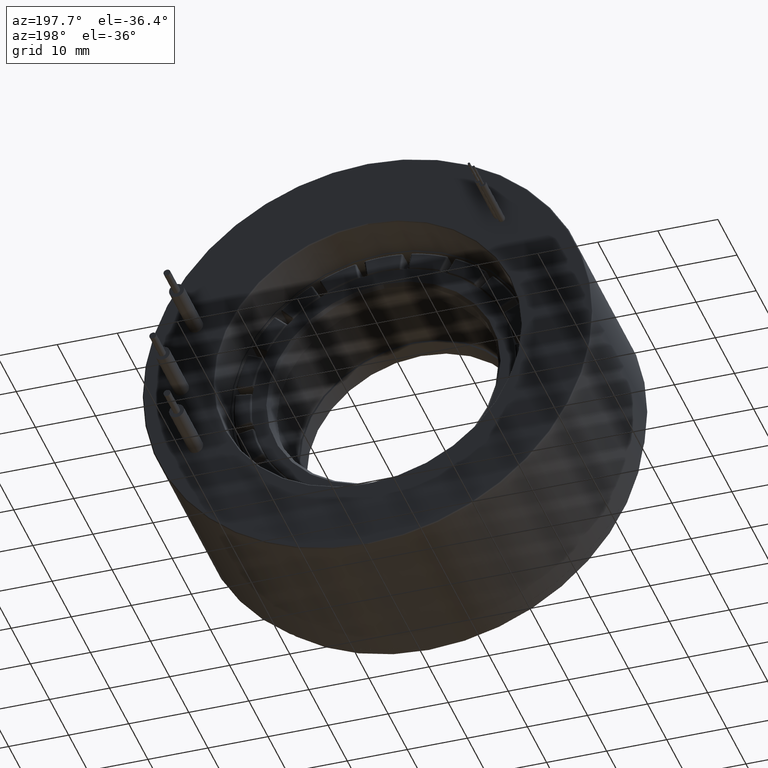
[diagram: clean part render]
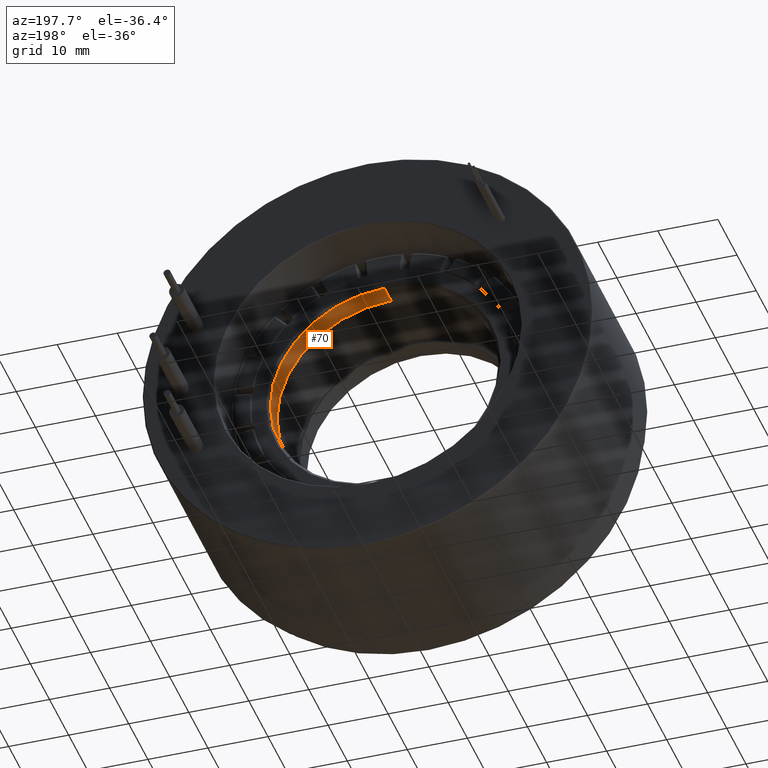
[diagram: same view with one face highlighted and labeled with its STEP entity id]
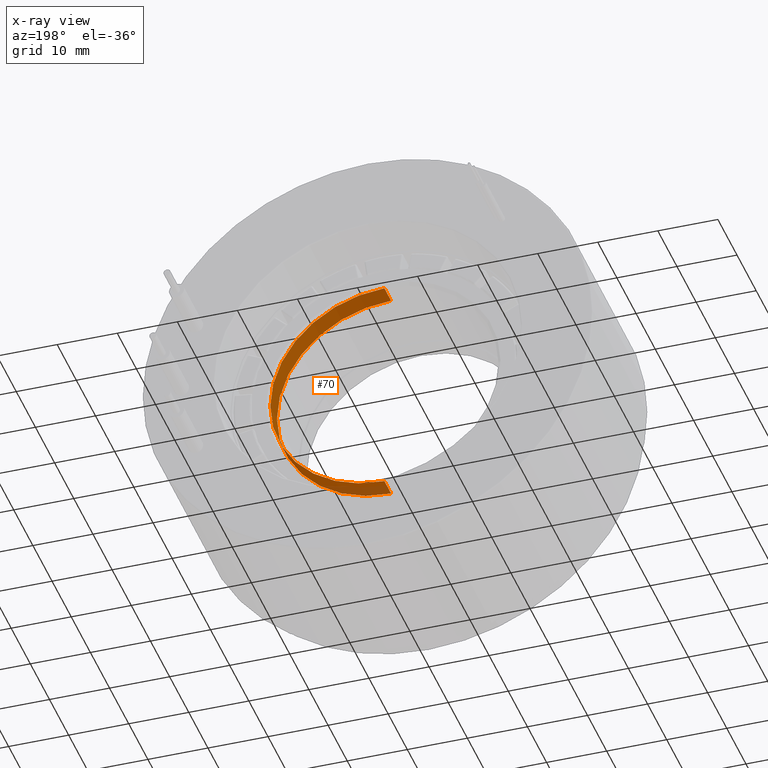
[diagram: x-ray of the same camera — body ghosted, the highlighted face saturated]
A machine part, auxiliary view. The second image highlights one B-rep face of the part: STEP entity #70.
The next image is the same camera in x-ray: the body ghosted, the highlighted face saturated — about 14% of this face is hidden behind the body in this view.
In plain terms, the highlighted cylindrical surface (partial cylindrical patch) has radius 19 mm, axis along (0, -1, 0).
Its self-contained STEP definition (entity closure, byte-faithful):
#56 = AXIS2_PLACEMENT_3D ( 'NONE', #3295, #1712, #1724 ) ;
#70 = ADVANCED_FACE ( 'NONE', ( #2190 ), #84, .F. ) ;
#84 = CYLINDRICAL_SURFACE ( 'NONE', #56, 19.00000000000000000 ) ;
#122 = DIRECTION ( 'NONE',  ( -0.0000000000000000000, 1.000000000000000000, -0.0000000000000000000 ) ) ;
#237 = VECTOR ( 'NONE', #3143, 1000.000000000000000 ) ;
#386 = CARTESIAN_POINT ( 'NONE',  ( 0.0000000000000000000, 19.49999999999999300, 0.0000000000000000000 ) ) ;
#422 = CARTESIAN_POINT ( 'NONE',  ( 2.326828918379971000E-015, 0.0000000000000000000, 19.00000000000000000 ) ) ;
#794 = ORIENTED_EDGE ( 'NONE', *, *, #1469, .T. ) ;
#895 = ORIENTED_EDGE ( 'NONE', *, *, #2965, .F. ) ;
#924 = DIRECTION ( 'NONE',  ( -0.0000000000000000000, -1.000000000000000000, -0.0000000000000000000 ) ) ;
#941 = EDGE_LOOP ( 'NONE', ( #1372, #2474, #794, #895 ) ) ;
#971 = CARTESIAN_POINT ( 'NONE',  ( 0.0000000000000000000, 19.49999999999999300, -19.00000000000000000 ) ) ;
#1032 = DIRECTION ( 'NONE',  ( -0.0000000000000000000, -1.000000000000000000, -0.0000000000000000000 ) ) ;
#1081 = CIRCLE ( 'NONE', #2337, 19.00000000000000000 ) ;
#1098 = VERTEX_POINT ( 'NONE', #1391 ) ;
#1372 = ORIENTED_EDGE ( 'NONE', *, *, #1653, .T. ) ;
#1387 = DIRECTION ( 'NONE',  ( 0.0000000000000000000, 0.0000000000000000000, 1.000000000000000000 ) ) ;
#1391 = CARTESIAN_POINT ( 'NONE',  ( 0.0000000000000000000, 16.00000000000000000, -19.00000000000000000 ) ) ;
#1469 = EDGE_CURVE ( 'NONE', #2867, #1098, #2697, .T. ) ;
#1547 = VERTEX_POINT ( 'NONE', #1844 ) ;
#1642 = LINE ( 'NONE', #2395, #237 ) ;
#1653 = EDGE_CURVE ( 'NONE', #1997, #1547, #1081, .T. ) ;
#1712 = DIRECTION ( 'NONE',  ( -0.0000000000000000000, -1.000000000000000000, -0.0000000000000000000 ) ) ;
#1724 = DIRECTION ( 'NONE',  ( 0.0000000000000000000, 0.0000000000000000000, -1.000000000000000000 ) ) ;
#1844 = CARTESIAN_POINT ( 'NONE',  ( 2.326828918379971000E-015, 19.49999999999999300, 19.00000000000000000 ) ) ;
#1966 = VECTOR ( 'NONE', #924, 1000.000000000000000 ) ;
#1997 = VERTEX_POINT ( 'NONE', #971 ) ;
#2190 = FACE_OUTER_BOUND ( 'NONE', #941, .T. ) ;
#2301 = DIRECTION ( 'NONE',  ( 0.0000000000000000000, 0.0000000000000000000, -1.000000000000000000 ) ) ;
#2314 = CARTESIAN_POINT ( 'NONE',  ( 0.0000000000000000000, 16.00000000000000000, 0.0000000000000000000 ) ) ;
#2337 = AXIS2_PLACEMENT_3D ( 'NONE', #386, #122, #1387 ) ;
#2395 = CARTESIAN_POINT ( 'NONE',  ( 0.0000000000000000000, 0.0000000000000000000, -19.00000000000000000 ) ) ;
#2402 = AXIS2_PLACEMENT_3D ( 'NONE', #2314, #1032, #2301 ) ;
#2474 = ORIENTED_EDGE ( 'NONE', *, *, #3206, .T. ) ;
#2630 = CARTESIAN_POINT ( 'NONE',  ( 2.326828918379971000E-015, 16.00000000000000000, 19.00000000000000000 ) ) ;
#2697 = CIRCLE ( 'NONE', #2402, 19.00000000000000000 ) ;
#2867 = VERTEX_POINT ( 'NONE', #2630 ) ;
#2965 = EDGE_CURVE ( 'NONE', #1997, #1098, #1642, .T. ) ;
#3143 = DIRECTION ( 'NONE',  ( -0.0000000000000000000, -1.000000000000000000, -0.0000000000000000000 ) ) ;
#3175 = LINE ( 'NONE', #422, #1966 ) ;
#3206 = EDGE_CURVE ( 'NONE', #1547, #2867, #3175, .T. ) ;
#3295 = CARTESIAN_POINT ( 'NONE',  ( 0.0000000000000000000, 0.0000000000000000000, 0.0000000000000000000 ) ) ;